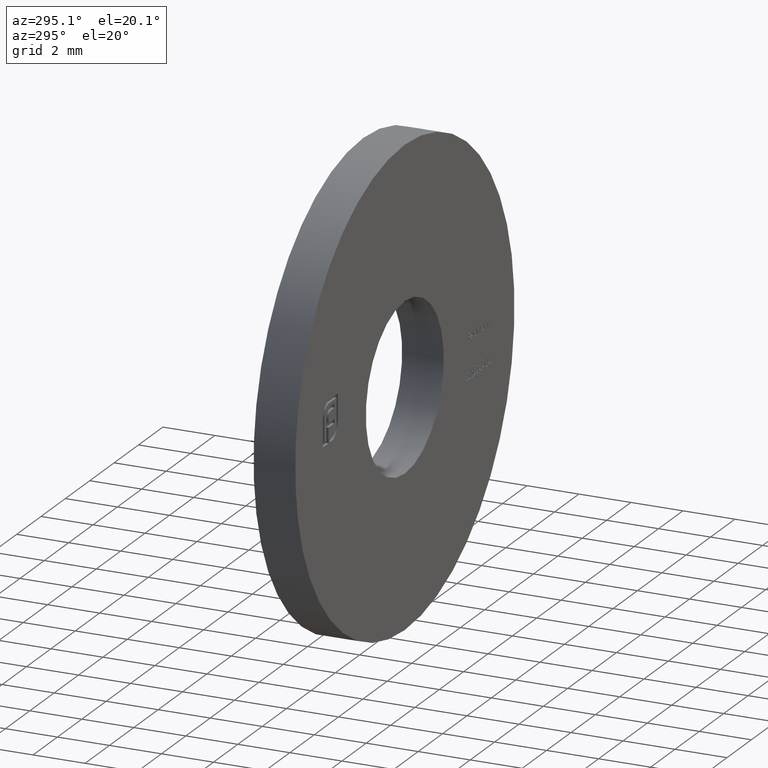
[diagram: clean part render]
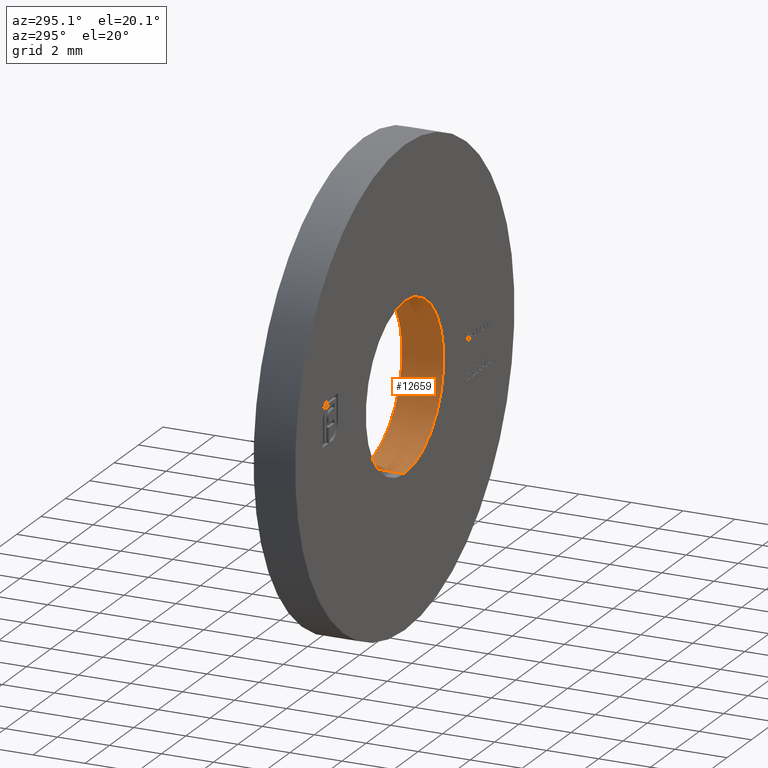
[diagram: same view with one face highlighted and labeled with its STEP entity id]
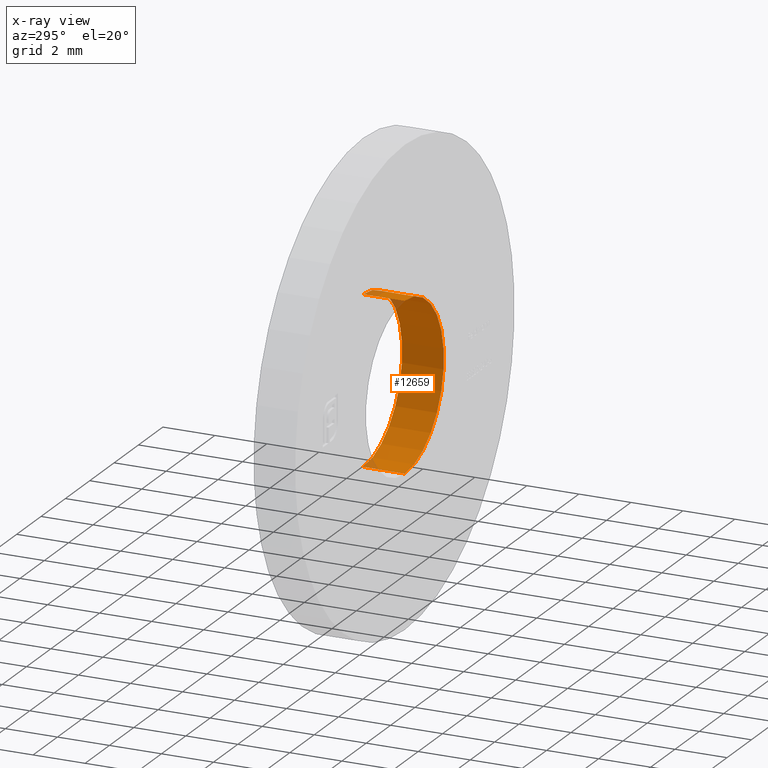
[diagram: x-ray of the same camera — body ghosted, the highlighted face saturated]
A machine part, auxiliary view. The second image highlights one B-rep face of the part: STEP entity #12659.
The next image is the same camera in x-ray: the body ghosted, the highlighted face saturated — about 3% of this face is hidden behind the body in this view.
In plain terms, the highlighted cylindrical surface (partial cylindrical patch) has radius 3.2 mm, axis along (-0, -1, -0).
Its self-contained STEP definition (entity closure, byte-faithful):
#41 = VECTOR ( 'NONE', #1991, 1000.000000000000000 ) ;
#393 = ORIENTED_EDGE ( 'NONE', *, *, #997, .T. ) ;
#859 = VECTOR ( 'NONE', #14047, 1000.000000000000000 ) ;
#997 = EDGE_CURVE ( 'NONE', #9339, #1967, #5163, .T. ) ;
#1967 = VERTEX_POINT ( 'NONE', #13163 ) ;
#1991 = DIRECTION ( 'NONE',  ( -0.000000000000000000, -1.000000000000000000, -0.000000000000000000 ) ) ;
#4215 = DIRECTION ( 'NONE',  ( -0.000000000000000000, -1.000000000000000000, -0.000000000000000000 ) ) ;
#4355 = EDGE_CURVE ( 'NONE', #8097, #9716, #12236, .T. ) ;
#4452 = EDGE_CURVE ( 'NONE', #9339, #8097, #4514, .T. ) ;
#4514 = LINE ( 'NONE', #10143, #859 ) ;
#4732 = CARTESIAN_POINT ( 'NONE',  ( 0.000000000000000000, -0.8000000000000000444, -3.200000000000000178 ) ) ;
#4884 = EDGE_CURVE ( 'NONE', #1967, #9716, #13815, .T. ) ;
#5117 = EDGE_LOOP ( 'NONE', ( #12388, #393, #14513, #8345 ) ) ;
#5163 = CIRCLE ( 'NONE', #15418, 3.200000000000000178 ) ;
#5453 = DIRECTION ( 'NONE',  ( 0.000000000000000000, 0.000000000000000000, 1.000000000000000000 ) ) ;
#5470 = CARTESIAN_POINT ( 'NONE',  ( 0.000000000000000000, 0.8000000000000000444, 0.000000000000000000 ) ) ;
#6043 = AXIS2_PLACEMENT_3D ( 'NONE', #8520, #7057, #11176 ) ;
#6580 = DIRECTION ( 'NONE',  ( 0.000000000000000000, 1.000000000000000000, 0.000000000000000000 ) ) ;
#7057 = DIRECTION ( 'NONE',  ( 0.000000000000000000, 1.000000000000000000, 0.000000000000000000 ) ) ;
#8097 = VERTEX_POINT ( 'NONE', #8286 ) ;
#8286 = CARTESIAN_POINT ( 'NONE',  ( 3.918869757271530460E-16, -0.8000000000000000444, 3.200000000000000178 ) ) ;
#8345 = ORIENTED_EDGE ( 'NONE', *, *, #4355, .F. ) ;
#8520 = CARTESIAN_POINT ( 'NONE',  ( 0.000000000000000000, -0.8000000000000000444, 0.000000000000000000 ) ) ;
#8664 = FACE_OUTER_BOUND ( 'NONE', #5117, .T. ) ;
#9339 = VERTEX_POINT ( 'NONE', #12648 ) ;
#9716 = VERTEX_POINT ( 'NONE', #4732 ) ;
#10143 = CARTESIAN_POINT ( 'NONE',  ( 3.918869757271530460E-16, 0.8000000000000000444, 3.200000000000000178 ) ) ;
#10416 = CARTESIAN_POINT ( 'NONE',  ( 0.000000000000000000, 0.8000000000000000444, 0.000000000000000000 ) ) ;
#10886 = CYLINDRICAL_SURFACE ( 'NONE', #13177, 3.200000000000000178 ) ;
#11176 = DIRECTION ( 'NONE',  ( 0.000000000000000000, 0.000000000000000000, 1.000000000000000000 ) ) ;
#12236 = CIRCLE ( 'NONE', #6043, 3.200000000000000178 ) ;
#12273 = CARTESIAN_POINT ( 'NONE',  ( 0.000000000000000000, 0.8000000000000000444, -3.200000000000000178 ) ) ;
#12388 = ORIENTED_EDGE ( 'NONE', *, *, #4452, .F. ) ;
#12648 = CARTESIAN_POINT ( 'NONE',  ( 3.918869757271530460E-16, 0.8000000000000000444, 3.200000000000000178 ) ) ;
#12659 = ADVANCED_FACE ( 'NONE', ( #8664 ), #10886, .F. ) ;
#13163 = CARTESIAN_POINT ( 'NONE',  ( 0.000000000000000000, 0.8000000000000000444, -3.200000000000000178 ) ) ;
#13177 = AXIS2_PLACEMENT_3D ( 'NONE', #5470, #4215, #13215 ) ;
#13215 = DIRECTION ( 'NONE',  ( 0.000000000000000000, 0.000000000000000000, -1.000000000000000000 ) ) ;
#13815 = LINE ( 'NONE', #12273, #41 ) ;
#14047 = DIRECTION ( 'NONE',  ( -0.000000000000000000, -1.000000000000000000, -0.000000000000000000 ) ) ;
#14513 = ORIENTED_EDGE ( 'NONE', *, *, #4884, .T. ) ;
#15418 = AXIS2_PLACEMENT_3D ( 'NONE', #10416, #6580, #5453 ) ;